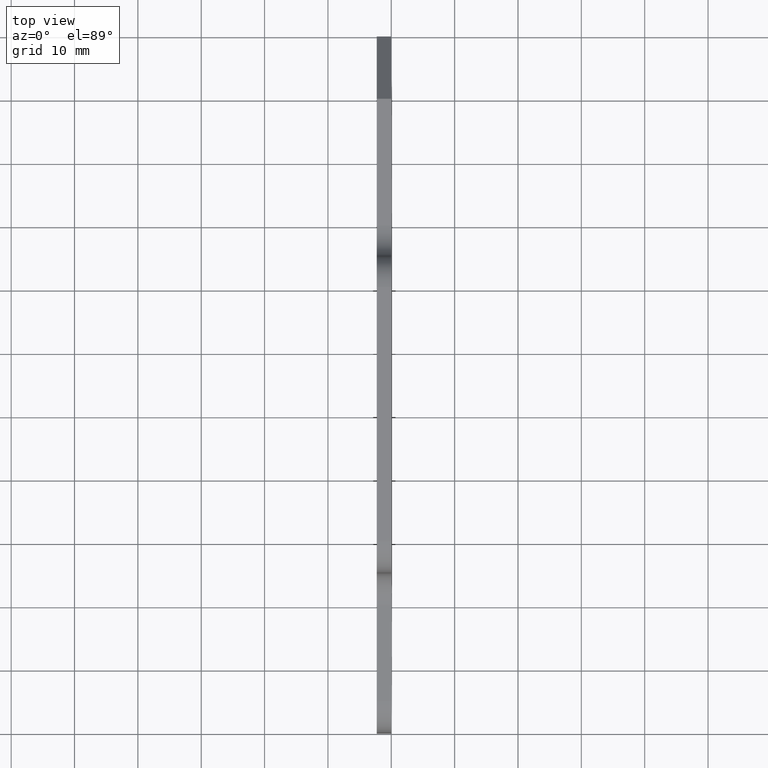
[diagram: clean part render]
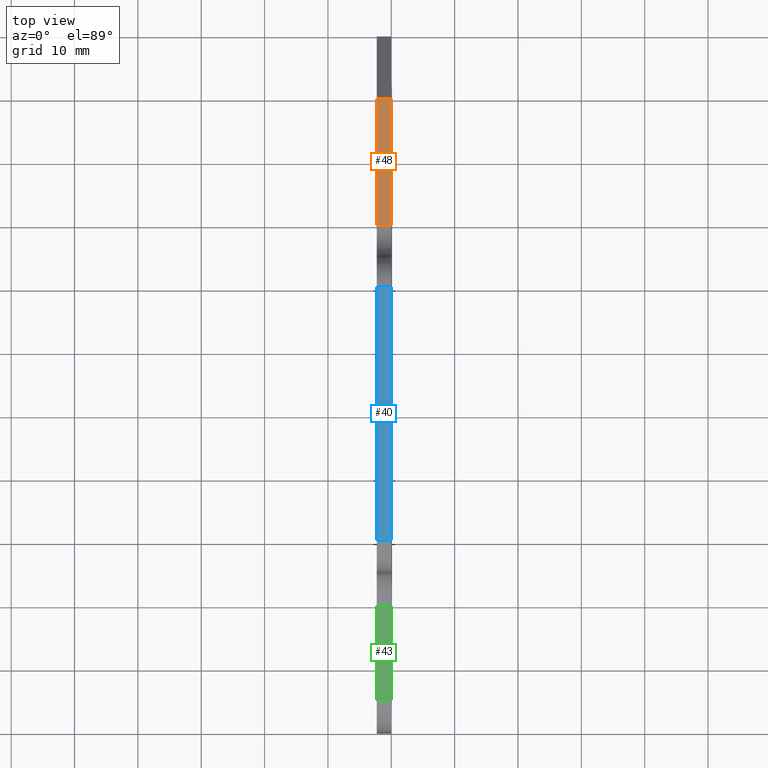
[diagram: same view with three faces highlighted in distinct colors, each labeled with its STEP entity id]
A machine part, top view with three faces highlighted in distinct colors.
Their STEP definitions:

[orange] entity #48 — the highlighted planar face has unit normal (0, 0, -1).
#48=ADVANCED_FACE('',(#159),#158,.F.);
#158=PLANE('',#509);
#159=FACE_OUTER_BOUND('',#510,.T.);
#506=CARTESIAN_POINT('',(2.30000000000E-01,3.80000000000E+01,1.00000000000E+01));
#507=DIRECTION('',(0.00000000000E+00,0.00000000000E+00,-1.00000000000E+00));
#508=DIRECTION('',(-1.00000000000E+00,0.00000000000E+00,0.00000000000E+00));
#509=AXIS2_PLACEMENT_3D('',#506,#507,#508);
#510=EDGE_LOOP('',(#696,#697,#698,#699));
#696=ORIENTED_EDGE('',*,*,#911,.T.);
#697=ORIENTED_EDGE('',*,*,#912,.F.);
#698=ORIENTED_EDGE('',*,*,#913,.F.);
#699=ORIENTED_EDGE('',*,*,#909,.T.);
#909=EDGE_CURVE('',#1152,#1145,#1153,.T.);
#911=EDGE_CURVE('',#1145,#1165,#1166,.T.);
#912=EDGE_CURVE('',#1172,#1165,#1173,.T.);
#913=EDGE_CURVE('',#1152,#1172,#1179,.T.);
#1145=VERTEX_POINT('',#1826);
#1152=VERTEX_POINT('',#1831);
#1153=LINE('',#1832,#1833);
#1165=VERTEX_POINT('',#1839);
#1166=LINE('',#1840,#1841);
#1172=VERTEX_POINT('',#1843);
#1173=LINE('',#1844,#1845);
#1179=LINE('',#1847,#1848);
#1826=CARTESIAN_POINT('',(0.00000000000E+00,4.00000000000E+01,1.00000000000E+01));
#1831=CARTESIAN_POINT('',(-2.30000000000E+00,4.00000000000E+01,1.00000000000E+01));
#1832=CARTESIAN_POINT('',(-2.30000000000E+00,4.00000000000E+01,1.00000000000E+01));
#1833=VECTOR('',#1834,2.30000000000E+00);
#1834=DIRECTION('',(1.00000000000E+00,0.00000000000E+00,0.00000000000E+00));
#1839=CARTESIAN_POINT('',(0.00000000000E+00,6.00000000000E+01,1.00000000000E+01));
#1840=CARTESIAN_POINT('',(0.00000000000E+00,4.00000000000E+01,1.00000000000E+01));
#1841=VECTOR('',#1842,2.00000000000E+01);
#1842=DIRECTION('',(0.00000000000E+00,1.00000000000E+00,0.00000000000E+00));
#1843=CARTESIAN_POINT('',(-2.30000000000E+00,6.00000000000E+01,1.00000000000E+01));
#1844=CARTESIAN_POINT('',(-2.30000000000E+00,6.00000000000E+01,1.00000000000E+01));
#1845=VECTOR('',#1846,2.30000000000E+00);
#1846=DIRECTION('',(1.00000000000E+00,0.00000000000E+00,0.00000000000E+00));
#1847=CARTESIAN_POINT('',(-2.30000000000E+00,4.00000000000E+01,1.00000000000E+01));
#1848=VECTOR('',#1849,2.00000000000E+01);
#1849=DIRECTION('',(0.00000000000E+00,1.00000000000E+00,0.00000000000E+00));

[blue] entity #40 — the highlighted planar face has unit normal (0, 0, -1).
#40=ADVANCED_FACE('',(#79),#78,.F.);
#78=PLANE('',#469);
#79=FACE_OUTER_BOUND('',#470,.T.);
#466=CARTESIAN_POINT('',(2.30000000000E-01,-1.40000000000E+01,2.50000000000E+01));
#467=DIRECTION('',(0.00000000000E+00,0.00000000000E+00,-1.00000000000E+00));
#468=DIRECTION('',(-1.00000000000E+00,0.00000000000E+00,0.00000000000E+00));
#469=AXIS2_PLACEMENT_3D('',#466,#467,#468);
#470=EDGE_LOOP('',(#664,#665,#666,#667));
#664=ORIENTED_EDGE('',*,*,#886,.T.);
#665=ORIENTED_EDGE('',*,*,#887,.F.);
#666=ORIENTED_EDGE('',*,*,#888,.F.);
#667=ORIENTED_EDGE('',*,*,#889,.T.);
#886=EDGE_CURVE('',#997,#998,#999,.T.);
#887=EDGE_CURVE('',#1005,#998,#1006,.T.);
#888=EDGE_CURVE('',#1012,#1005,#1013,.T.);
#889=EDGE_CURVE('',#1012,#997,#1019,.T.);
#997=VERTEX_POINT('',#1738);
#998=VERTEX_POINT('',#1739);
#999=LINE('',#1740,#1741);
#1005=VERTEX_POINT('',#1743);
#1006=LINE('',#1744,#1745);
#1012=VERTEX_POINT('',#1747);
#1013=LINE('',#1748,#1749);
#1019=LINE('',#1751,#1752);
#1738=CARTESIAN_POINT('',(0.00000000000E+00,-1.00000000000E+01,2.50000000000E+01));
#1739=CARTESIAN_POINT('',(0.00000000000E+00,3.00000000000E+01,2.50000000000E+01));
#1740=CARTESIAN_POINT('',(0.00000000000E+00,-1.00000000000E+01,2.50000000000E+01));
#1741=VECTOR('',#1742,4.00000000000E+01);
#1742=DIRECTION('',(0.00000000000E+00,1.00000000000E+00,0.00000000000E+00));
#1743=CARTESIAN_POINT('',(-2.30000000000E+00,3.00000000000E+01,2.50000000000E+01));
#1744=CARTESIAN_POINT('',(-2.30000000000E+00,3.00000000000E+01,2.50000000000E+01));
#1745=VECTOR('',#1746,2.30000000000E+00);
#1746=DIRECTION('',(1.00000000000E+00,0.00000000000E+00,0.00000000000E+00));
#1747=CARTESIAN_POINT('',(-2.30000000000E+00,-1.00000000000E+01,2.50000000000E+01));
#1748=CARTESIAN_POINT('',(-2.30000000000E+00,-1.00000000000E+01,2.50000000000E+01));
#1749=VECTOR('',#1750,4.00000000000E+01);
#1750=DIRECTION('',(0.00000000000E+00,1.00000000000E+00,0.00000000000E+00));
#1751=CARTESIAN_POINT('',(-2.30000000000E+00,-1.00000000000E+01,2.50000000000E+01));
#1752=VECTOR('',#1753,2.30000000000E+00);
#1753=DIRECTION('',(1.00000000000E+00,0.00000000000E+00,0.00000000000E+00));

[green] entity #43 — the highlighted planar face has unit normal (0, 0, -1).
#43=ADVANCED_FACE('',(#109),#108,.F.);
#108=PLANE('',#484);
#109=FACE_OUTER_BOUND('',#485,.T.);
#481=CARTESIAN_POINT('',(2.30000000000E-01,-3.65000000000E+01,1.00000000000E+01));
#482=DIRECTION('',(0.00000000000E+00,0.00000000000E+00,-1.00000000000E+00));
#483=DIRECTION('',(-1.00000000000E+00,0.00000000000E+00,0.00000000000E+00));
#484=AXIS2_PLACEMENT_3D('',#481,#482,#483);
#485=EDGE_LOOP('',(#676,#677,#678,#679));
#676=ORIENTED_EDGE('',*,*,#896,.T.);
#677=ORIENTED_EDGE('',*,*,#897,.F.);
#678=ORIENTED_EDGE('',*,*,#898,.F.);
#679=ORIENTED_EDGE('',*,*,#899,.T.);
#896=EDGE_CURVE('',#1065,#1066,#1067,.T.);
#897=EDGE_CURVE('',#1073,#1066,#1074,.T.);
#898=EDGE_CURVE('',#1080,#1073,#1081,.T.);
#899=EDGE_CURVE('',#1080,#1065,#1087,.T.);
#1065=VERTEX_POINT('',#1780);
#1066=VERTEX_POINT('',#1781);
#1067=LINE('',#1782,#1783);
#1073=VERTEX_POINT('',#1785);
#1074=LINE('',#1786,#1787);
#1080=VERTEX_POINT('',#1789);
#1081=LINE('',#1790,#1791);
#1087=LINE('',#1793,#1794);
#1780=CARTESIAN_POINT('',(0.00000000000E+00,-3.50000000000E+01,1.00000000000E+01));
#1781=CARTESIAN_POINT('',(0.00000000000E+00,-2.00000000000E+01,1.00000000000E+01));
#1782=CARTESIAN_POINT('',(0.00000000000E+00,-3.50000000000E+01,1.00000000000E+01));
#1783=VECTOR('',#1784,1.50000000000E+01);
#1784=DIRECTION('',(0.00000000000E+00,1.00000000000E+00,0.00000000000E+00));
#1785=CARTESIAN_POINT('',(-2.30000000000E+00,-2.00000000000E+01,1.00000000000E+01));
#1786=CARTESIAN_POINT('',(-2.30000000000E+00,-2.00000000000E+01,1.00000000000E+01));
#1787=VECTOR('',#1788,2.30000000000E+00);
#1788=DIRECTION('',(1.00000000000E+00,0.00000000000E+00,0.00000000000E+00));
#1789=CARTESIAN_POINT('',(-2.30000000000E+00,-3.50000000000E+01,1.00000000000E+01));
#1790=CARTESIAN_POINT('',(-2.30000000000E+00,-3.50000000000E+01,1.00000000000E+01));
#1791=VECTOR('',#1792,1.50000000000E+01);
#1792=DIRECTION('',(0.00000000000E+00,1.00000000000E+00,0.00000000000E+00));
#1793=CARTESIAN_POINT('',(-2.30000000000E+00,-3.50000000000E+01,1.00000000000E+01));
#1794=VECTOR('',#1795,2.30000000000E+00);
#1795=DIRECTION('',(1.00000000000E+00,0.00000000000E+00,0.00000000000E+00));